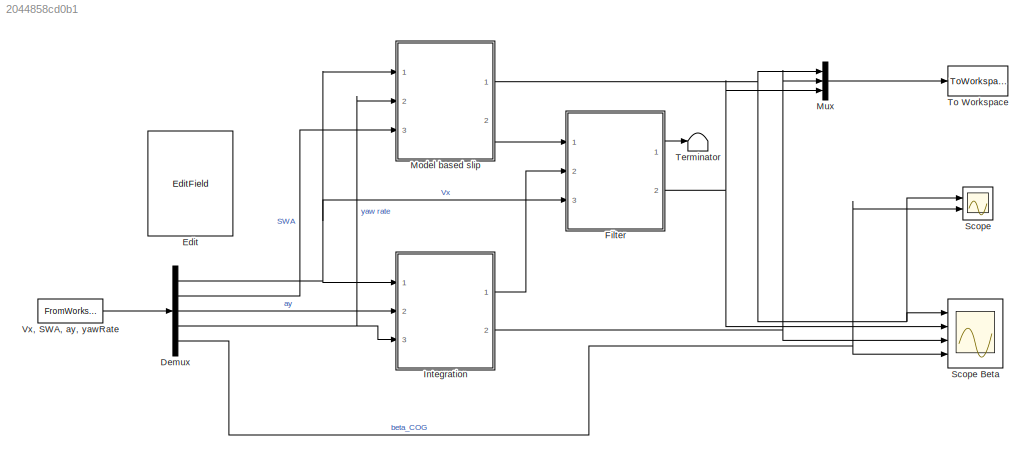
MODEL slx_2044858cd0b1
KIND model
CONFIG AbsTol = auto
CONFIG EnableMultiTasking = off
CONFIG FixedStep = 0.01
CONFIG MaxStep = auto
CONFIG MinStep = auto
CONFIG RelTol = 1e-3
CONFIG SampleTimeConstraint = Unconstrained
CONFIG Solver = VariableStepAuto
CONFIG SolverName = VariableStepAuto
CONFIG StartTime = 0.0
CONFIG StopTime = Time(end)
BLOCK [Demux] Demux
  DisplayOption = bar
  Outputs = 5
  Ports = [1, 5]
BLOCK [EditField] Edit
  Alignment = Center
  Tag = T, filter constant
  WebBlockId = 163
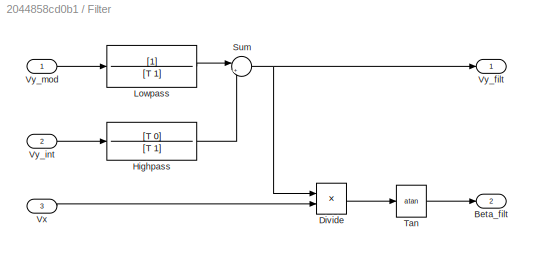
BLOCK [SubSystem] Filter
  Ports = [3, 2]
  RequestExecContextInheritance = off
BLOCK [Outport] Filter/Beta_filt
  IconDisplay = Port number
  Port = 2
BLOCK [Product] Filter/Divide
  InputSameDT = off
  Inputs = */
  OutDataTypeStr = Inherit: Inherit via internal rule
  Ports = [2, 1]
  RndMeth = Floor
  SaturateOnIntegerOverflow = off
BLOCK [TransferFcn] Filter/Highpass
  Denominator = [T 1]
  Numerator = [T 0]
BLOCK [TransferFcn] Filter/Lowpass
  Denominator = [T 1]
BLOCK [Sum] Filter/Sum
  IconShape = round
  InputSameDT = off
  Inputs = |++
  OutDataTypeStr = Inherit: Inherit via internal rule
  Ports = [2, 1]
  SaturateOnIntegerOverflow = off
BLOCK [Trigonometry] Filter/Tan
  Operator = atan
  Ports = [1, 1]
BLOCK [Inport] Filter/Vx
  IconDisplay = Port number
  Port = 3
BLOCK [Outport] Filter/Vy_filt
  IconDisplay = Port number
BLOCK [Inport] Filter/Vy_int
  IconDisplay = Port number
  Port = 2
BLOCK [Inport] Filter/Vy_mod
  IconDisplay = Port number
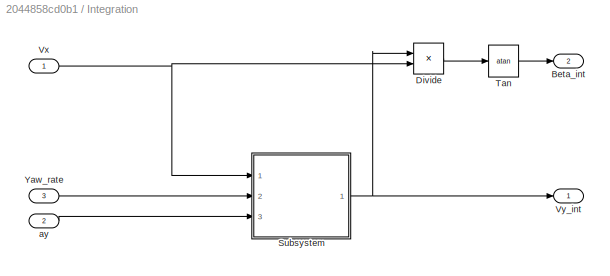
BLOCK [SubSystem] Integration
  Ports = [3, 2]
  RequestExecContextInheritance = off
BLOCK [Outport] Integration/Beta_int
  IconDisplay = Port number
  Port = 2
BLOCK [Product] Integration/Divide
  InputSameDT = off
  Inputs = */
  OutDataTypeStr = Inherit: Inherit via internal rule
  Ports = [2, 1]
  RndMeth = Floor
  SaturateOnIntegerOverflow = off
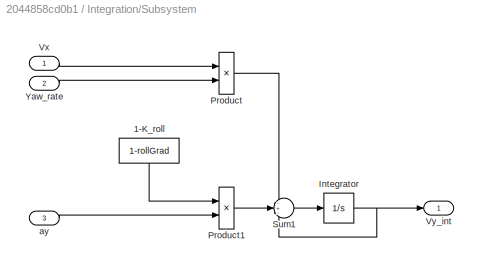
BLOCK [SubSystem] Integration/Subsystem
  Ports = [3, 1]
  RequestExecContextInheritance = off
BLOCK [Constant] Integration/Subsystem/1-K_roll
  Value = 1-rollGrad
BLOCK [Integrator] Integration/Subsystem/Integrator
  Ports = [1, 1]
BLOCK [Product] Integration/Subsystem/Product
  InputSameDT = off
  OutDataTypeStr = Inherit: Inherit via internal rule
  Ports = [2, 1]
  RndMeth = Floor
  SaturateOnIntegerOverflow = off
BLOCK [Product] Integration/Subsystem/Product1
  InputSameDT = off
  OutDataTypeStr = Inherit: Inherit via internal rule
  Ports = [2, 1]
  RndMeth = Floor
  SaturateOnIntegerOverflow = off
BLOCK [Sum] Integration/Subsystem/Sum1
  IconShape = round
  InputSameDT = off
  Inputs = -+-
  OutDataTypeStr = Inherit: Inherit via internal rule
  Ports = [3, 1]
  SaturateOnIntegerOverflow = off
BLOCK [Inport] Integration/Subsystem/Vx
  IconDisplay = Port number
BLOCK [Outport] Integration/Subsystem/Vy_int
  IconDisplay = Port number
BLOCK [Inport] Integration/Subsystem/Yaw_rate
  IconDisplay = Port number
  Port = 2
BLOCK [Inport] Integration/Subsystem/ay
  IconDisplay = Port number
  Port = 3
BLOCK [Trigonometry] Integration/Tan
  Operator = atan
  Ports = [1, 1]
BLOCK [Inport] Integration/Vx
  IconDisplay = Port number
BLOCK [Outport] Integration/Vy_int
  IconDisplay = Port number
BLOCK [Inport] Integration/Yaw_rate
  IconDisplay = Port number
  Port = 3
BLOCK [Inport] Integration/ay
  IconDisplay = Port number
  Port = 2
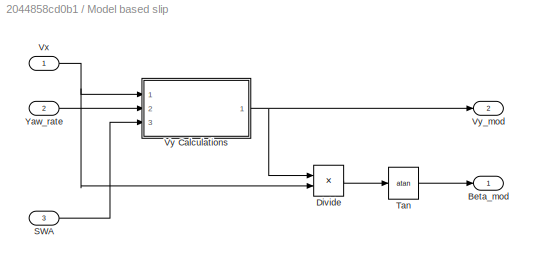
BLOCK [SubSystem] Model based slip
  Ports = [3, 2]
  RequestExecContextInheritance = off
BLOCK [Outport] Model based slip/Beta_mod
  IconDisplay = Port number
BLOCK [Product] Model based slip/Divide
  InputSameDT = off
  Inputs = */
  OutDataTypeStr = Inherit: Inherit via internal rule
  Ports = [2, 1]
  RndMeth = Floor
  SaturateOnIntegerOverflow = off
BLOCK [Inport] Model based slip/SWA
  IconDisplay = Port number
  Port = 3
BLOCK [Trigonometry] Model based slip/Tan
  Operator = atan
  Ports = [1, 1]
BLOCK [Inport] Model based slip/Vx
  IconDisplay = Port number
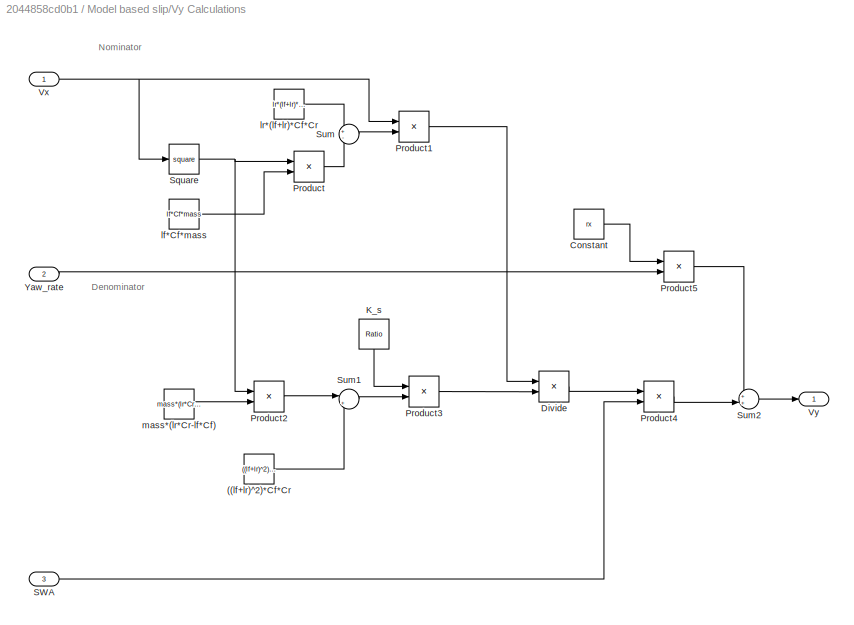
BLOCK [SubSystem] Model based slip/Vy Calculations
  Ports = [3, 1]
  RequestExecContextInheritance = off
BLOCK [Constant] Model based slip/Vy Calculations/((lf+lr)^2)*Cf*Cr
  Value = ((lf+lr)^2)*Cf*Cr
BLOCK [Constant] Model based slip/Vy Calculations/Constant
  Value = rx
BLOCK [Product] Model based slip/Vy Calculations/Divide
  InputSameDT = off
  Inputs = */
  OutDataTypeStr = Inherit: Inherit via internal rule
  Ports = [2, 1]
  RndMeth = Floor
  SaturateOnIntegerOverflow = off
BLOCK [Constant] Model based slip/Vy Calculations/K_s
  Value = Ratio
BLOCK [Product] Model based slip/Vy Calculations/Product
  InputSameDT = off
  OutDataTypeStr = Inherit: Inherit via internal rule
  Ports = [2, 1]
  RndMeth = Floor
  SaturateOnIntegerOverflow = off
BLOCK [Product] Model based slip/Vy Calculations/Product1
  InputSameDT = off
  OutDataTypeStr = Inherit: Inherit via internal rule
  Ports = [2, 1]
  RndMeth = Floor
  SaturateOnIntegerOverflow = off
BLOCK [Product] Model based slip/Vy Calculations/Product2
  InputSameDT = off
  OutDataTypeStr = Inherit: Inherit via internal rule
  Ports = [2, 1]
  RndMeth = Floor
  SaturateOnIntegerOverflow = off
BLOCK [Product] Model based slip/Vy Calculations/Product3
  InputSameDT = off
  OutDataTypeStr = Inherit: Inherit via internal rule
  Ports = [2, 1]
  RndMeth = Floor
  SaturateOnIntegerOverflow = off
BLOCK [Product] Model based slip/Vy Calculations/Product4
  InputSameDT = off
  OutDataTypeStr = Inherit: Inherit via internal rule
  Ports = [2, 1]
  RndMeth = Floor
  SaturateOnIntegerOverflow = off
BLOCK [Product] Model based slip/Vy Calculations/Product5
  InputSameDT = off
  OutDataTypeStr = Inherit: Inherit via internal rule
  Ports = [2, 1]
  RndMeth = Floor
  SaturateOnIntegerOverflow = off
BLOCK [Inport] Model based slip/Vy Calculations/SWA
  IconDisplay = Port number
  Port = 3
BLOCK [Math] Model based slip/Vy Calculations/Square
  Operator = square
  Ports = [1, 1]
  RndMeth = Zero
BLOCK [Sum] Model based slip/Vy Calculations/Sum
  IconShape = round
  InputSameDT = off
  Inputs = +-
  OutDataTypeStr = Inherit: Inherit via internal rule
  Ports = [2, 1]
  SaturateOnIntegerOverflow = off
BLOCK [Sum] Model based slip/Vy Calculations/Sum1
  IconShape = round
  InputSameDT = off
  Inputs = |++
  OutDataTypeStr = Inherit: Inherit via internal rule
  Ports = [2, 1]
  SaturateOnIntegerOverflow = off
BLOCK [Sum] Model based slip/Vy Calculations/Sum2
  IconShape = round
  InputSameDT = off
  Inputs = ++|
  OutDataTypeStr = Inherit: Inherit via internal rule
  Ports = [2, 1]
  SaturateOnIntegerOverflow = off
BLOCK [Inport] Model based slip/Vy Calculations/Vx
  IconDisplay = Port number
BLOCK [Outport] Model based slip/Vy Calculations/Vy
  IconDisplay = Port number
BLOCK [Inport] Model based slip/Vy Calculations/Yaw_rate
  IconDisplay = Port number
  Port = 2
BLOCK [Constant] Model based slip/Vy Calculations/lf*Cf*mass
  Value = lf*Cf*mass
BLOCK [Constant] Model based slip/Vy Calculations/lr*(lf+lr)*Cf*Cr
  Value = lr*(lf+lr)*Cf*Cr
BLOCK [Constant] Model based slip/Vy Calculations/mass*(lr*Cr-lf*Cf)
  Value = mass*(lr*Cr-lf*Cf)
BLOCK [Outport] Model based slip/Vy_mod
  IconDisplay = Port number
  Port = 2
BLOCK [Inport] Model based slip/Yaw_rate
  IconDisplay = Port number
  Port = 2
BLOCK [Mux] Mux
  DisplayOption = bar
  Inputs = 3
  Ports = [3, 1]
BLOCK [Scope] Scope
  Floating = off
  NumInputPorts = 2
  Ports = [2]
  ScopeSpecificationString = Simulink.scopes.TimeScopeBlockCfg('CurrentConfiguration', extmgr.ConfigurationSet(extmgr.Configuration('Core','General UI',true,'FigureColor',[1 1 1]),extmgr.Configuration('Core','Source UI',true),extmgr.Configuration('Sources','WiredSimulink',true,'DataLoggingVariableName','ScopeData1'),extmgr.Configuration('Visuals','Time Domain',true,'SerializedDisplays',{struct('MinYLimReal','-0.03514','MaxYLi...<+1704ch>
BLOCK [Scope] Scope Beta 
  Floating = off
  NumInputPorts = 4
  Ports = [4]
  ScopeSpecificationString = Simulink.scopes.TimeScopeBlockCfg('CurrentConfiguration', extmgr.ConfigurationSet(extmgr.Configuration('Core','General UI',true,'FigureColor',[1 1 1]),extmgr.Configuration('Core','Source UI',true),extmgr.Configuration('Sources','WiredSimulink',true,'DataLoggingVariableName','ScopeData3'),extmgr.Configuration('Visuals','Time Domain',true,'SerializedDisplays',{struct('MinYLimReal','-0.18084','MaxYLi...<+1870ch>
BLOCK [Terminator] Terminator
BLOCK [ToWorkspace] To Workspace
  FixptAsFi = on
  MaxDataPoints = inf
  Ports = [1]
  SampleTime = -1
  Save2DSignal = 3-D array (concatenate along third dimension)
  VariableName = beta_out
BLOCK [FromWorkspace] Vx, SWA, ay, yawRate
  SampleTime = 0
  VariableName = simin
  ZeroCross = on
ANNOTATION Model based slip/Vy Calculations: Denominator
ANNOTATION Model based slip/Vy Calculations: Nominator
NET Demux:1 -> Filter:3, Integration:1, Model based slip:1
LINE Demux:2 -> Model based slip:3
LINE Demux:3 -> Integration:2
NET Demux:4 -> Integration:3, Model based slip:2
NET Demux:5 -> Scope Beta :4, Scope:2
LINE Filter/Divide:1 -> Filter/Tan:1
LINE Filter/Highpass:1 -> Filter/Sum:2
LINE Filter/Lowpass:1 -> Filter/Sum:1
NET Filter/Sum:1 -> Filter/Divide:1, Filter/Vy_filt:1
LINE Filter/Tan:1 -> Filter/Beta_filt:1
LINE Filter/Vx:1 -> Filter/Divide:2
LINE Filter/Vy_int:1 -> Filter/Highpass:1
LINE Filter/Vy_mod:1 -> Filter/Lowpass:1
LINE Filter:1 -> Terminator:1
NET Filter:2 -> Mux:3, Scope Beta :2
LINE Integration/Divide:1 -> Integration/Tan:1
LINE Integration/Subsystem/1-K_roll:1 -> Integration/Subsystem/Product1:1
NET Integration/Subsystem/Integrator:1 -> Integration/Subsystem/Sum1:3, Integration/Subsystem/Vy_int:1
LINE Integration/Subsystem/Product1:1 -> Integration/Subsystem/Sum1:2
LINE Integration/Subsystem/Product:1 -> Integration/Subsystem/Sum1:1
LINE Integration/Subsystem/Sum1:1 -> Integration/Subsystem/Integrator:1
LINE Integration/Subsystem/Vx:1 -> Integration/Subsystem/Product:1
LINE Integration/Subsystem/Yaw_rate:1 -> Integration/Subsystem/Product:2
LINE Integration/Subsystem/ay:1 -> Integration/Subsystem/Product1:2
NET Integration/Subsystem:1 -> Integration/Divide:1, Integration/Vy_int:1
LINE Integration/Tan:1 -> Integration/Beta_int:1
NET Integration/Vx:1 -> Integration/Divide:2, Integration/Subsystem:1
LINE Integration/Yaw_rate:1 -> Integration/Subsystem:2
LINE Integration/ay:1 -> Integration/Subsystem:3
LINE Integration:1 -> Filter:2
NET Integration:2 -> Mux:2, Scope Beta :3
LINE Model based slip/Divide:1 -> Model based slip/Tan:1
LINE Model based slip/SWA:1 -> Model based slip/Vy Calculations:3
LINE Model based slip/Tan:1 -> Model based slip/Beta_mod:1
NET Model based slip/Vx:1 -> Model based slip/Divide:2, Model based slip/Vy Calculations:1
LINE Model based slip/Vy Calculations/((lf+lr)^2)*Cf*Cr:1 -> Model based slip/Vy Calculations/Sum1:2
LINE Model based slip/Vy Calculations/Constant:1 -> Model based slip/Vy Calculations/Product5:1
LINE Model based slip/Vy Calculations/Divide:1 -> Model based slip/Vy Calculations/Product4:1
LINE Model based slip/Vy Calculations/K_s:1 -> Model based slip/Vy Calculations/Product3:1
LINE Model based slip/Vy Calculations/Product1:1 -> Model based slip/Vy Calculations/Divide:1
LINE Model based slip/Vy Calculations/Product2:1 -> Model based slip/Vy Calculations/Sum1:1
LINE Model based slip/Vy Calculations/Product3:1 -> Model based slip/Vy Calculations/Divide:2
LINE Model based slip/Vy Calculations/Product4:1 -> Model based slip/Vy Calculations/Sum2:2
LINE Model based slip/Vy Calculations/Product5:1 -> Model based slip/Vy Calculations/Sum2:1
LINE Model based slip/Vy Calculations/Product:1 -> Model based slip/Vy Calculations/Sum:2
LINE Model based slip/Vy Calculations/SWA:1 -> Model based slip/Vy Calculations/Product4:2
NET Model based slip/Vy Calculations/Square:1 -> Model based slip/Vy Calculations/Product2:1, Model based slip/Vy Calculations/Product:1
LINE Model based slip/Vy Calculations/Sum1:1 -> Model based slip/Vy Calculations/Product3:2
LINE Model based slip/Vy Calculations/Sum2:1 -> Model based slip/Vy Calculations/Vy:1
LINE Model based slip/Vy Calculations/Sum:1 -> Model based slip/Vy Calculations/Product1:2
NET Model based slip/Vy Calculations/Vx:1 -> Model based slip/Vy Calculations/Product1:1, Model based slip/Vy Calculations/Square:1
LINE Model based slip/Vy Calculations/Yaw_rate:1 -> Model based slip/Vy Calculations/Product5:2
LINE Model based slip/Vy Calculations/lf*Cf*mass:1 -> Model based slip/Vy Calculations/Product:2
LINE Model based slip/Vy Calculations/lr*(lf+lr)*Cf*Cr:1 -> Model based slip/Vy Calculations/Sum:1
LINE Model based slip/Vy Calculations/mass*(lr*Cr-lf*Cf):1 -> Model based slip/Vy Calculations/Product2:2
NET Model based slip/Vy Calculations:1 -> Model based slip/Divide:1, Model based slip/Vy_mod:1
LINE Model based slip/Yaw_rate:1 -> Model based slip/Vy Calculations:2
NET Model based slip:1 -> Mux:1, Scope Beta :1, Scope:1
LINE Model based slip:2 -> Filter:1
LINE Mux:1 -> To Workspace:1
LINE Vx, SWA, ay, yawRate:1 -> Demux:1
note: NET lines group one-source signal fan-out (src -> all destinations, sorted); 1:1 wires keep LINE
